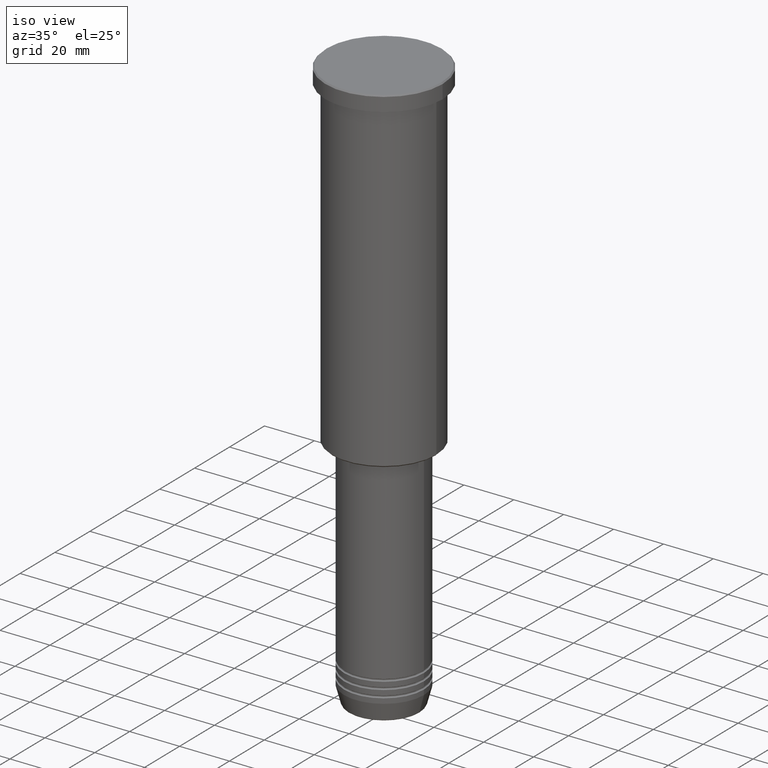
[diagram: clean part render]
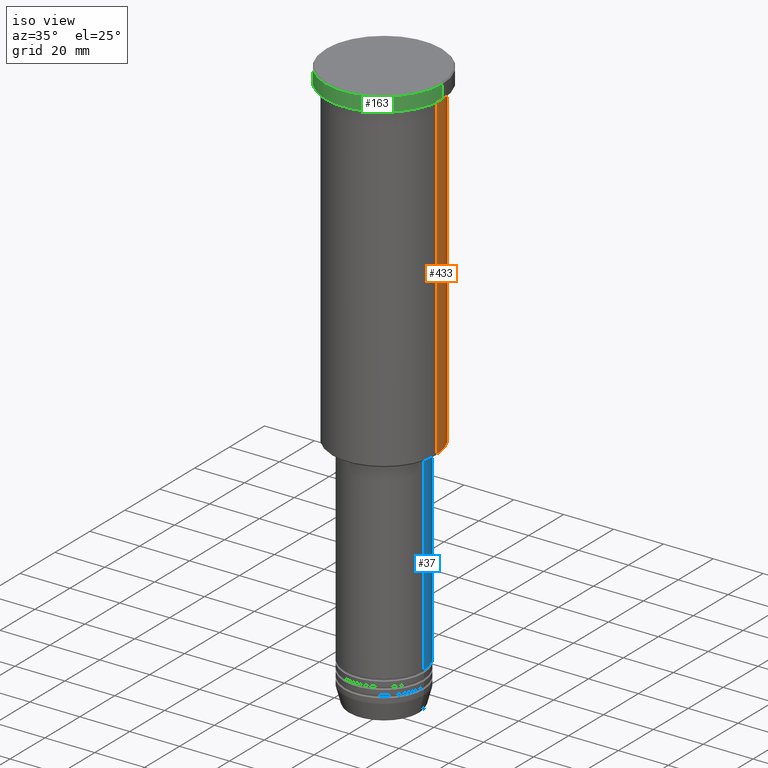
[diagram: same view with three faces highlighted in distinct colors, each labeled with its STEP entity id]
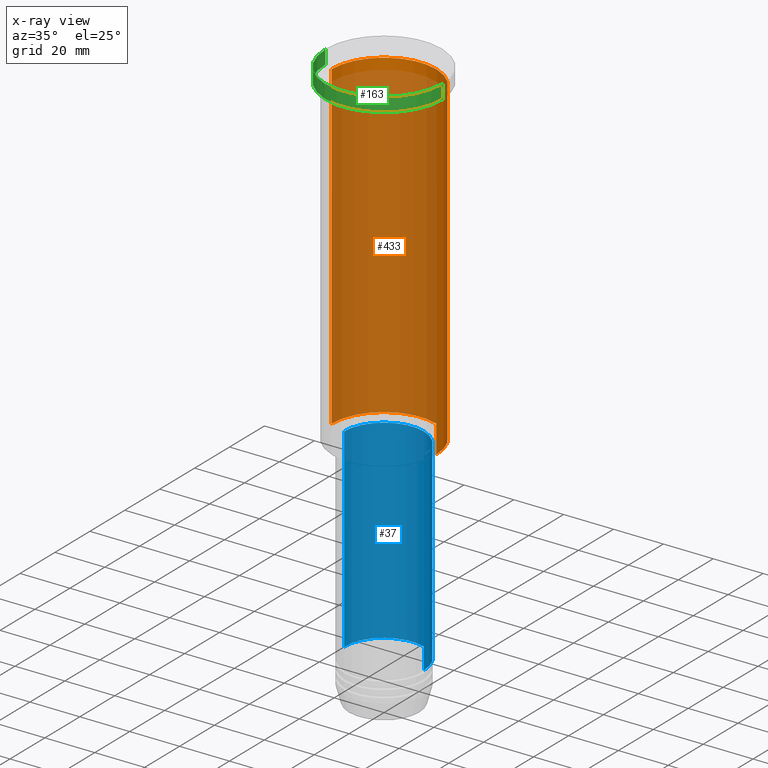
[diagram: x-ray of the same camera — body ghosted, the three highlighted faces saturated]
A machine part, iso view with three faces highlighted in distinct colors.
The next image is the same camera in x-ray (body ghosted, the three faces saturated) — at least one of them is partly hidden behind the body in this view.
Their STEP definitions:

[orange] entity #433 — the highlighted cylindrical surface (partial cylindrical patch) has radius 21 mm, axis along (-0, -0, 1).
#9 = DIRECTION ( 'NONE',  ( -0.000000000000000000, -0.000000000000000000, 1.000000000000000000 ) ) ;
#21 = CARTESIAN_POINT ( 'NONE',  ( 21.00000000000000000, 0.000000000000000000, -135.5000000000000284 ) ) ;
#107 = DIRECTION ( 'NONE',  ( -0.000000000000000000, -0.000000000000000000, 1.000000000000000000 ) ) ;
#136 = DIRECTION ( 'NONE',  ( -0.000000000000000000, -0.000000000000000000, 1.000000000000000000 ) ) ;
#169 = LINE ( 'NONE', #1071, #594 ) ;
#181 = DIRECTION ( 'NONE',  ( -0.000000000000000000, -0.000000000000000000, 1.000000000000000000 ) ) ;
#193 = ORIENTED_EDGE ( 'NONE', *, *, #386, .F. ) ;
#266 = CARTESIAN_POINT ( 'NONE',  ( -21.00000000000000000, 2.571758278209441661E-15, -135.5000000000000284 ) ) ;
#291 = EDGE_CURVE ( 'NONE', #1176, #822, #576, .T. ) ;
#329 = EDGE_CURVE ( 'NONE', #828, #822, #169, .T. ) ;
#364 = CARTESIAN_POINT ( 'NONE',  ( 0.000000000000000000, 0.000000000000000000, -135.5000000000000284 ) ) ;
#373 = CARTESIAN_POINT ( 'NONE',  ( 21.00000000000000000, 0.000000000000000000, 0.000000000000000000 ) ) ;
#381 = AXIS2_PLACEMENT_3D ( 'NONE', #364, #181, #1113 ) ;
#386 = EDGE_CURVE ( 'NONE', #627, #1176, #997, .T. ) ;
#433 = ADVANCED_FACE ( 'NONE', ( #755 ), #924, .T. ) ;
#514 = CIRCLE ( 'NONE', #381, 21.00000000000000000 ) ;
#576 = CIRCLE ( 'NONE', #844, 21.00000000000000000 ) ;
#593 = CARTESIAN_POINT ( 'NONE',  ( 0.000000000000000000, 0.000000000000000000, -6.999999999999994671 ) ) ;
#594 = VECTOR ( 'NONE', #830, 1000.000000000000000 ) ;
#627 = VERTEX_POINT ( 'NONE', #21 ) ;
#748 = CARTESIAN_POINT ( 'NONE',  ( 21.00000000000000000, 0.000000000000000000, -6.999999999999994671 ) ) ;
#755 = FACE_OUTER_BOUND ( 'NONE', #1043, .T. ) ;
#822 = VERTEX_POINT ( 'NONE', #928 ) ;
#825 = VECTOR ( 'NONE', #9, 1000.000000000000000 ) ;
#828 = VERTEX_POINT ( 'NONE', #266 ) ;
#830 = DIRECTION ( 'NONE',  ( -0.000000000000000000, -0.000000000000000000, 1.000000000000000000 ) ) ;
#837 = DIRECTION ( 'NONE',  ( 1.000000000000000000, 0.000000000000000000, 0.000000000000000000 ) ) ;
#844 = AXIS2_PLACEMENT_3D ( 'NONE', #593, #136, #869 ) ;
#848 = ORIENTED_EDGE ( 'NONE', *, *, #291, .F. ) ;
#869 = DIRECTION ( 'NONE',  ( 1.000000000000000000, 0.000000000000000000, 0.000000000000000000 ) ) ;
#919 = CARTESIAN_POINT ( 'NONE',  ( 0.000000000000000000, 0.000000000000000000, 0.000000000000000000 ) ) ;
#924 = CYLINDRICAL_SURFACE ( 'NONE', #1011, 21.00000000000000000 ) ;
#926 = ORIENTED_EDGE ( 'NONE', *, *, #968, .T. ) ;
#928 = CARTESIAN_POINT ( 'NONE',  ( -21.00000000000000000, 2.571758278209441661E-15, -6.999999999999994671 ) ) ;
#968 = EDGE_CURVE ( 'NONE', #627, #828, #514, .T. ) ;
#997 = LINE ( 'NONE', #373, #825 ) ;
#1011 = AXIS2_PLACEMENT_3D ( 'NONE', #919, #107, #837 ) ;
#1043 = EDGE_LOOP ( 'NONE', ( #926, #1103, #848, #193 ) ) ;
#1071 = CARTESIAN_POINT ( 'NONE',  ( -21.00000000000000000, 2.571758278209441661E-15, 0.000000000000000000 ) ) ;
#1103 = ORIENTED_EDGE ( 'NONE', *, *, #329, .T. ) ;
#1113 = DIRECTION ( 'NONE',  ( -1.000000000000000000, 0.000000000000000000, 0.000000000000000000 ) ) ;
#1176 = VERTEX_POINT ( 'NONE', #748 ) ;

[blue] entity #37 — the highlighted cylindrical surface (partial cylindrical patch) has radius 16 mm, axis along (-0, -0, 1).
#12 = ORIENTED_EDGE ( 'NONE', *, *, #591, .F. ) ;
#36 = VERTEX_POINT ( 'NONE', #297 ) ;
#37 = ADVANCED_FACE ( 'NONE', ( #197 ), #478, .T. ) ;
#51 = DIRECTION ( 'NONE',  ( -0.000000000000000000, -0.000000000000000000, 1.000000000000000000 ) ) ;
#104 = DIRECTION ( 'NONE',  ( 1.000000000000000000, 0.000000000000000000, 0.000000000000000000 ) ) ;
#110 = CARTESIAN_POINT ( 'NONE',  ( 0.000000000000000000, 0.000000000000000000, 0.000000000000000000 ) ) ;
#155 = AXIS2_PLACEMENT_3D ( 'NONE', #415, #51, #681 ) ;
#195 = VECTOR ( 'NONE', #205, 1000.000000000000000 ) ;
#197 = FACE_OUTER_BOUND ( 'NONE', #882, .T. ) ;
#201 = CARTESIAN_POINT ( 'NONE',  ( -16.00000000000000000, 1.959434878635765131E-15, -137.0000000000000000 ) ) ;
#203 = DIRECTION ( 'NONE',  ( -0.000000000000000000, -0.000000000000000000, 1.000000000000000000 ) ) ;
#205 = DIRECTION ( 'NONE',  ( -0.000000000000000000, -0.000000000000000000, 1.000000000000000000 ) ) ;
#206 = VERTEX_POINT ( 'NONE', #987 ) ;
#297 = CARTESIAN_POINT ( 'NONE',  ( 16.00000000000000000, 0.000000000000000000, -214.9999999999999716 ) ) ;
#316 = CIRCLE ( 'NONE', #422, 16.00000000000000000 ) ;
#385 = DIRECTION ( 'NONE',  ( -0.000000000000000000, -0.000000000000000000, 1.000000000000000000 ) ) ;
#404 = VERTEX_POINT ( 'NONE', #201 ) ;
#415 = CARTESIAN_POINT ( 'NONE',  ( 0.000000000000000000, 0.000000000000000000, -214.9999999999999716 ) ) ;
#422 = AXIS2_PLACEMENT_3D ( 'NONE', #455, #625, #104 ) ;
#455 = CARTESIAN_POINT ( 'NONE',  ( 0.000000000000000000, 0.000000000000000000, -137.0000000000000000 ) ) ;
#471 = LINE ( 'NONE', #656, #195 ) ;
#478 = CYLINDRICAL_SURFACE ( 'NONE', #933, 16.00000000000000000 ) ;
#481 = EDGE_CURVE ( 'NONE', #206, #404, #742, .T. ) ;
#538 = ORIENTED_EDGE ( 'NONE', *, *, #923, .T. ) ;
#591 = EDGE_CURVE ( 'NONE', #36, #731, #471, .T. ) ;
#625 = DIRECTION ( 'NONE',  ( -0.000000000000000000, -0.000000000000000000, 1.000000000000000000 ) ) ;
#656 = CARTESIAN_POINT ( 'NONE',  ( 16.00000000000000000, 0.000000000000000000, 0.000000000000000000 ) ) ;
#681 = DIRECTION ( 'NONE',  ( 1.000000000000000000, 0.000000000000000000, 0.000000000000000000 ) ) ;
#683 = CIRCLE ( 'NONE', #155, 16.00000000000000000 ) ;
#701 = CARTESIAN_POINT ( 'NONE',  ( 16.00000000000000000, 0.000000000000000000, -137.0000000000000000 ) ) ;
#731 = VERTEX_POINT ( 'NONE', #701 ) ;
#742 = LINE ( 'NONE', #1022, #935 ) ;
#882 = EDGE_LOOP ( 'NONE', ( #538, #1057, #1082, #12 ) ) ;
#922 = DIRECTION ( 'NONE',  ( 1.000000000000000000, 0.000000000000000000, 0.000000000000000000 ) ) ;
#923 = EDGE_CURVE ( 'NONE', #36, #206, #683, .T. ) ;
#933 = AXIS2_PLACEMENT_3D ( 'NONE', #110, #385, #922 ) ;
#935 = VECTOR ( 'NONE', #203, 1000.000000000000000 ) ;
#987 = CARTESIAN_POINT ( 'NONE',  ( -16.00000000000000000, 1.959434878635765131E-15, -214.9999999999999716 ) ) ;
#1022 = CARTESIAN_POINT ( 'NONE',  ( -16.00000000000000000, 1.959434878635765131E-15, 0.000000000000000000 ) ) ;
#1057 = ORIENTED_EDGE ( 'NONE', *, *, #481, .T. ) ;
#1082 = ORIENTED_EDGE ( 'NONE', *, *, #1097, .F. ) ;
#1097 = EDGE_CURVE ( 'NONE', #731, #404, #316, .T. ) ;

[green] entity #163 — the highlighted cylindrical surface (partial cylindrical patch) has radius 23.5 mm, axis along (-0, -0, 1).
#8 = ORIENTED_EDGE ( 'NONE', *, *, #772, .T. ) ;
#71 = EDGE_CURVE ( 'NONE', #115, #321, #402, .T. ) ;
#76 = VERTEX_POINT ( 'NONE', #670 ) ;
#86 = CYLINDRICAL_SURFACE ( 'NONE', #417, 23.50000000000000000 ) ;
#90 = DIRECTION ( 'NONE',  ( -0.000000000000000000, -0.000000000000000000, 1.000000000000000000 ) ) ;
#115 = VERTEX_POINT ( 'NONE', #549 ) ;
#140 = CARTESIAN_POINT ( 'NONE',  ( -23.50000000000000000, 2.877919977996280320E-15, 0.000000000000000000 ) ) ;
#163 = ADVANCED_FACE ( 'NONE', ( #442 ), #86, .T. ) ;
#264 = AXIS2_PLACEMENT_3D ( 'NONE', #908, #1102, #477 ) ;
#267 = ORIENTED_EDGE ( 'NONE', *, *, #512, .F. ) ;
#290 = ORIENTED_EDGE ( 'NONE', *, *, #71, .T. ) ;
#321 = VERTEX_POINT ( 'NONE', #886 ) ;
#342 = DIRECTION ( 'NONE',  ( 1.000000000000000000, 0.000000000000000000, 0.000000000000000000 ) ) ;
#355 = CIRCLE ( 'NONE', #860, 23.50000000000000000 ) ;
#393 = DIRECTION ( 'NONE',  ( 1.000000000000000000, 0.000000000000000000, 0.000000000000000000 ) ) ;
#402 = LINE ( 'NONE', #855, #913 ) ;
#417 = AXIS2_PLACEMENT_3D ( 'NONE', #1173, #90, #342 ) ;
#430 = DIRECTION ( 'NONE',  ( -0.000000000000000000, -0.000000000000000000, 1.000000000000000000 ) ) ;
#442 = FACE_OUTER_BOUND ( 'NONE', #616, .T. ) ;
#474 = ORIENTED_EDGE ( 'NONE', *, *, #487, .T. ) ;
#477 = DIRECTION ( 'NONE',  ( 1.000000000000000000, 0.000000000000000000, 0.000000000000000000 ) ) ;
#487 = EDGE_CURVE ( 'NONE', #321, #76, #355, .T. ) ;
#512 = EDGE_CURVE ( 'NONE', #954, #76, #1128, .T. ) ;
#549 = CARTESIAN_POINT ( 'NONE',  ( 23.50000000000000000, 0.000000000000000000, -5.999999999999994671 ) ) ;
#590 = DIRECTION ( 'NONE',  ( -0.000000000000000000, -0.000000000000000000, 1.000000000000000000 ) ) ;
#616 = EDGE_LOOP ( 'NONE', ( #267, #8, #290, #474 ) ) ;
#670 = CARTESIAN_POINT ( 'NONE',  ( -23.50000000000000000, 2.877919977996280320E-15, -0.5000000000000837108 ) ) ;
#743 = CIRCLE ( 'NONE', #264, 23.50000000000000000 ) ;
#751 = CARTESIAN_POINT ( 'NONE',  ( 0.000000000000000000, 0.000000000000000000, -0.5000000000000837108 ) ) ;
#772 = EDGE_CURVE ( 'NONE', #954, #115, #743, .T. ) ;
#855 = CARTESIAN_POINT ( 'NONE',  ( 23.50000000000000000, 0.000000000000000000, 0.000000000000000000 ) ) ;
#860 = AXIS2_PLACEMENT_3D ( 'NONE', #751, #1119, #393 ) ;
#886 = CARTESIAN_POINT ( 'NONE',  ( 23.50000000000000000, 0.000000000000000000, -0.5000000000000837108 ) ) ;
#908 = CARTESIAN_POINT ( 'NONE',  ( 0.000000000000000000, 0.000000000000000000, -5.999999999999994671 ) ) ;
#913 = VECTOR ( 'NONE', #590, 1000.000000000000000 ) ;
#952 = VECTOR ( 'NONE', #430, 1000.000000000000000 ) ;
#954 = VERTEX_POINT ( 'NONE', #959 ) ;
#959 = CARTESIAN_POINT ( 'NONE',  ( -23.50000000000000000, 2.877919977996280320E-15, -5.999999999999994671 ) ) ;
#1102 = DIRECTION ( 'NONE',  ( -0.000000000000000000, -0.000000000000000000, 1.000000000000000000 ) ) ;
#1119 = DIRECTION ( 'NONE',  ( 0.000000000000000000, 0.000000000000000000, -1.000000000000000000 ) ) ;
#1128 = LINE ( 'NONE', #140, #952 ) ;
#1173 = CARTESIAN_POINT ( 'NONE',  ( 0.000000000000000000, 0.000000000000000000, 0.000000000000000000 ) ) ;